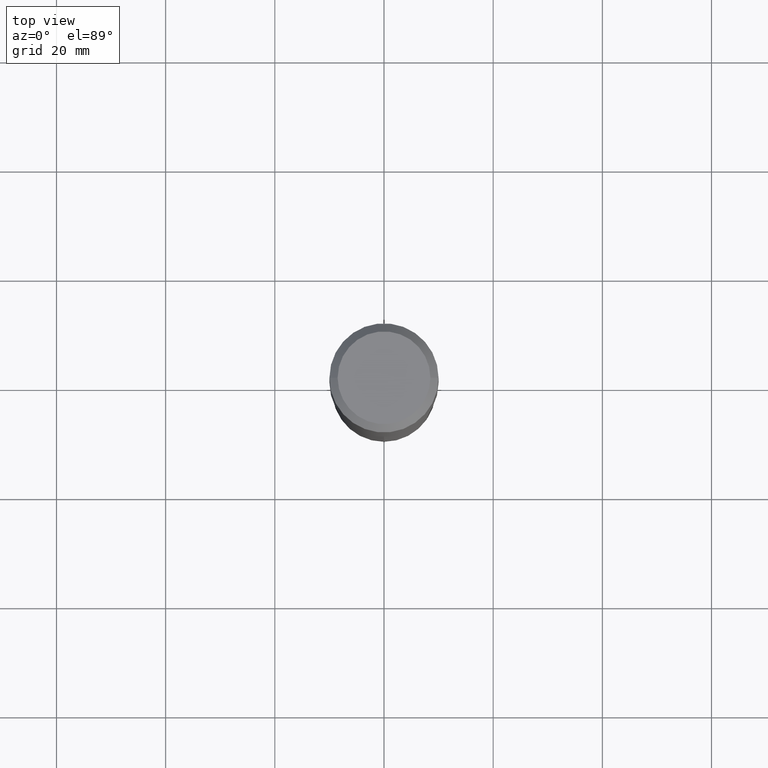
[diagram: clean part render]
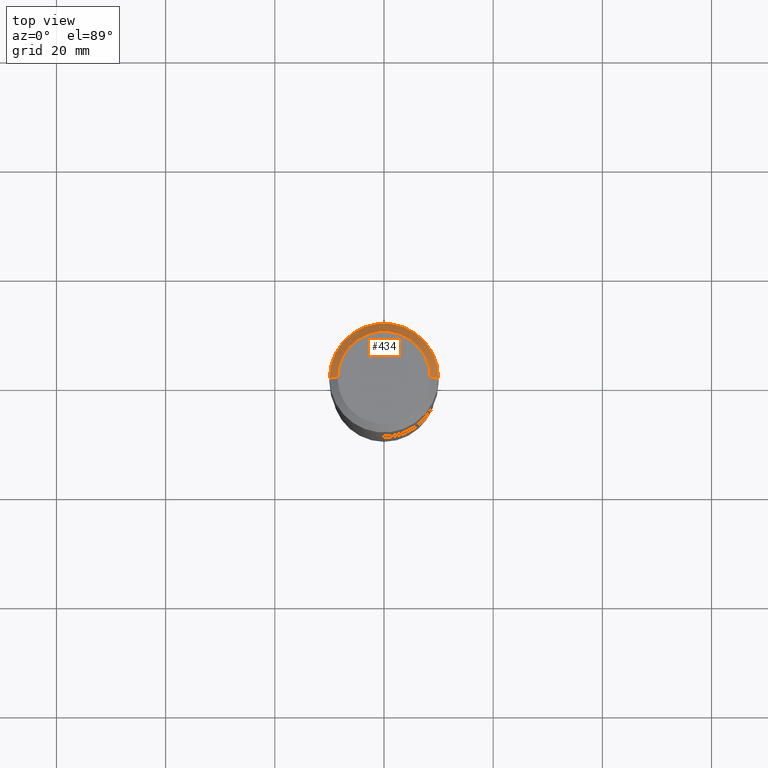
[diagram: same view with one face highlighted and labeled with its STEP entity id]
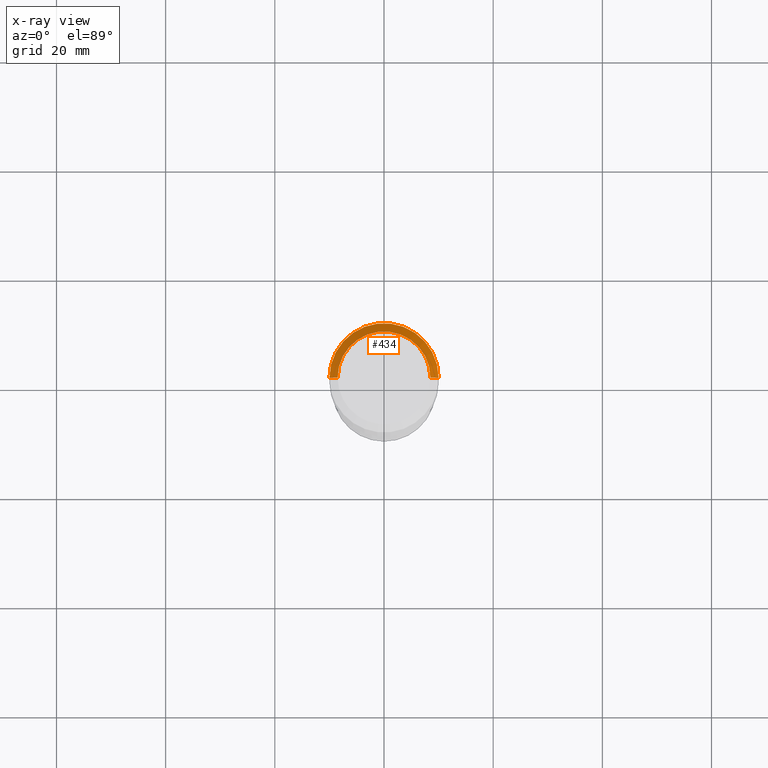
[diagram: x-ray of the same camera — body ghosted, the highlighted face saturated]
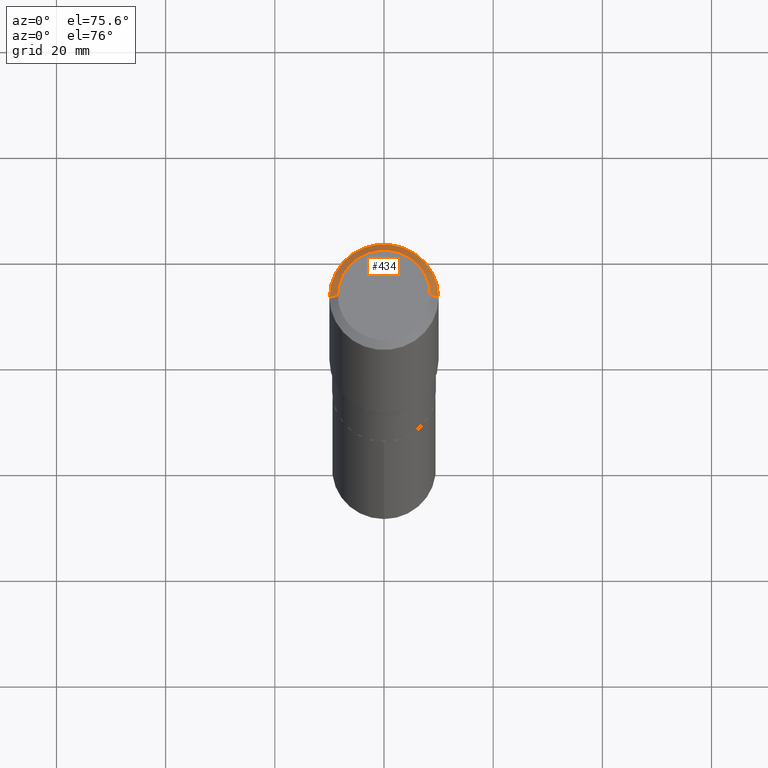
[diagram: same view with one face highlighted and labeled with its STEP entity id]
A machine part, top view. The second image highlights one B-rep face of the part: STEP entity #434.
The next image is the same camera in x-ray: the body ghosted, the highlighted face saturated — about 0% of this face is hidden behind the body in this view.
A second angle (auxiliary view) of the same face is appended — the face is thin or edge-on in the first view.
In plain terms, the highlighted conical surface has half-angle 45 deg.
Its self-contained STEP definition (entity closure, byte-faithful):
#8 = ORIENTED_EDGE ( 'NONE', *, *, #349, .F. ) ;
#56 = VECTOR ( 'NONE', #436, 39.37007874015748143 ) ;
#76 = VERTEX_POINT ( 'NONE', #212 ) ;
#86 = LINE ( 'NONE', #158, #388 ) ;
#91 = AXIS2_PLACEMENT_3D ( 'NONE', #366, #99, #177 ) ;
#95 = LINE ( 'NONE', #463, #56 ) ;
#99 = DIRECTION ( 'NONE',  ( 2.445468806185136597E-29, -3.491481338843145583E-15, -1.000000000000000000 ) ) ;
#106 = EDGE_CURVE ( 'NONE', #76, #161, #198, .T. ) ;
#141 = FACE_OUTER_BOUND ( 'NONE', #426, .T. ) ;
#153 = ORIENTED_EDGE ( 'NONE', *, *, #364, .T. ) ;
#158 = CARTESIAN_POINT ( 'NONE',  ( 0.3937000000000000499, -2.907167492188035018E-15, -0.05905500000000032251 ) ) ;
#161 = VERTEX_POINT ( 'NONE', #322 ) ;
#165 = CARTESIAN_POINT ( 'NONE',  ( -1.001697619218025096E-46, 1.430158722866394644E-32, 4.096137381448122233E-18 ) ) ;
#177 = DIRECTION ( 'NONE',  ( -1.000000000000000000, 6.982962677686267499E-15, 0.000000000000000000 ) ) ;
#192 = CONICAL_SURFACE ( 'NONE', #91, 0.3937000000000000499, 0.7853981633974453924 ) ;
#198 = CIRCLE ( 'NONE', #396, 0.3346450000000000258 ) ;
#211 = DIRECTION ( 'NONE',  ( 0.7071067811865454633, -7.319954787623248157E-15, -0.7071067811865495711 ) ) ;
#212 = CARTESIAN_POINT ( 'NONE',  ( 0.3346450000000000258, -2.601499422326144794E-15, 4.096137381465388580E-18 ) ) ;
#271 = CARTESIAN_POINT ( 'NONE',  ( 0.3937000000000000499, -2.955381836670466193E-15, -0.05905500000000032251 ) ) ;
#273 = ORIENTED_EDGE ( 'NONE', *, *, #448, .T. ) ;
#289 = DIRECTION ( 'NONE',  ( -2.445468806185136597E-29, 3.491481338843145583E-15, 1.000000000000000000 ) ) ;
#298 = CARTESIAN_POINT ( 'NONE',  ( 1.444171603492640145E-30, -2.061894304653831000E-16, -0.05905500000000032251 ) ) ;
#302 = CIRCLE ( 'NONE', #389, 0.3937000000000000499 ) ;
#309 = VERTEX_POINT ( 'NONE', #271 ) ;
#317 = DIRECTION ( 'NONE',  ( 1.000000000000000000, -6.982962677686267499E-15, 4.876152824003125403E-29 ) ) ;
#322 = CARTESIAN_POINT ( 'NONE',  ( -0.3346450000000000258, 2.439908260507010921E-15, 4.096137381431419798E-18 ) ) ;
#349 = EDGE_CURVE ( 'NONE', #161, #386, #95, .T. ) ;
#350 = CARTESIAN_POINT ( 'NONE',  ( -0.3937000000000000499, -5.934098617989565085E-16, -0.05905500000000032251 ) ) ;
#364 = EDGE_CURVE ( 'NONE', #76, #309, #86, .T. ) ;
#366 = CARTESIAN_POINT ( 'NONE',  ( 1.444171603492640145E-30, -2.061894304653831000E-16, -0.05905500000000032251 ) ) ;
#371 = DIRECTION ( 'NONE',  ( -2.445468806185136597E-29, 3.491481338843145583E-15, 1.000000000000000000 ) ) ;
#386 = VERTEX_POINT ( 'NONE', #350 ) ;
#388 = VECTOR ( 'NONE', #211, 39.37007874015748143 ) ;
#389 = AXIS2_PLACEMENT_3D ( 'NONE', #298, #371, #480 ) ;
#396 = AXIS2_PLACEMENT_3D ( 'NONE', #165, #289, #317 ) ;
#407 = ORIENTED_EDGE ( 'NONE', *, *, #106, .F. ) ;
#426 = EDGE_LOOP ( 'NONE', ( #407, #153, #273, #8 ) ) ;
#434 = ADVANCED_FACE ( 'NONE', ( #141 ), #192, .T. ) ;
#436 = DIRECTION ( 'NONE',  ( -0.7071067811865454633, 2.468850131082235367E-15, -0.7071067811865495711 ) ) ;
#448 = EDGE_CURVE ( 'NONE', #309, #386, #302, .T. ) ;
#463 = CARTESIAN_POINT ( 'NONE',  ( -0.3937000000000000499, 2.543002975739700634E-15, -0.05905500000000032251 ) ) ;
#480 = DIRECTION ( 'NONE',  ( 1.000000000000000000, -6.982962677686265133E-15, 0.000000000000000000 ) ) ;